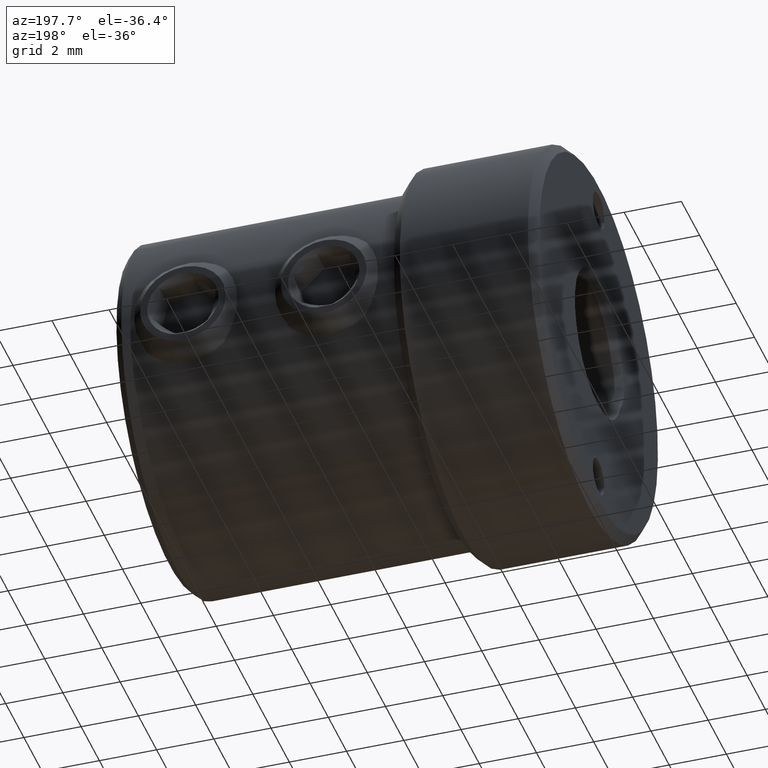
[diagram: clean part render]
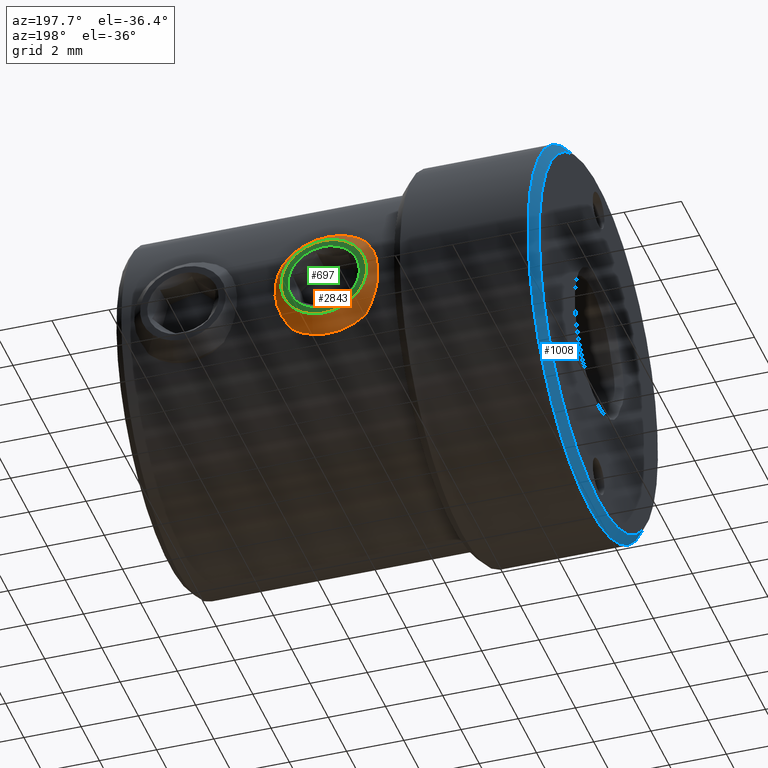
[diagram: same view with three faces highlighted in distinct colors, each labeled with its STEP entity id]
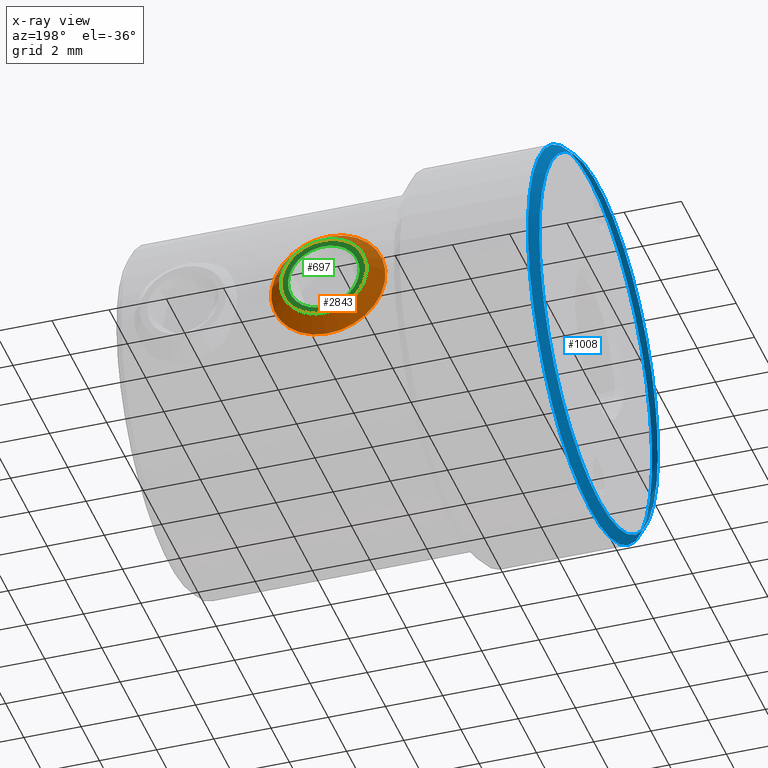
[diagram: x-ray of the same camera — body ghosted, the three highlighted faces saturated]
A machine part, auxiliary view with three faces highlighted in distinct colors.
The next image is the same camera in x-ray (body ghosted, the three faces saturated) — at least one of them is partly hidden behind the body in this view.
Their STEP definitions:

[orange] entity #2843 — the highlighted conical surface has half-angle 45 deg.
#467 = CIRCLE ( 'NONE', #2787, 2.000000000000000444 ) ;
#483 = EDGE_CURVE ( 'NONE', #1039, #1039, #467, .T. ) ;
#496 = DIRECTION ( 'NONE',  ( 5.083153145339558669E-16, -1.000000000000000000, -1.738507377522710013E-17 ) ) ;
#590 = AXIS2_PLACEMENT_3D ( 'NONE', #2140, #2669, #3161 ) ;
#753 = CARTESIAN_POINT ( 'NONE',  ( 7.989235859113584581, 6.350000000042742343, -1.443095981450885024 ) ) ;
#794 = DIRECTION ( 'NONE',  ( 0.2728239060718309350, 0.000000000000000000, -0.9620639876202147223 ) ) ;
#817 = DIRECTION ( 'NONE',  ( 0.2728239060718308240, 0.000000000000000000, -0.9620639876202148333 ) ) ;
#1039 = VERTEX_POINT ( 'NONE', #2370 ) ;
#1206 = EDGE_LOOP ( 'NONE', ( #2130 ) ) ;
#1272 = CIRCLE ( 'NONE', #590, 1.500000000021373348 ) ;
#1314 = FACE_BOUND ( 'NONE', #1206, .T. ) ;
#1361 = CARTESIAN_POINT ( 'NONE',  ( 7.580000000000008065, 5.849999999999995204, -4.544457926447441304E-16 ) ) ;
#1386 = EDGE_LOOP ( 'NONE', ( #2944 ) ) ;
#1387 = CARTESIAN_POINT ( 'NONE',  ( 7.580000000000008065, 5.850000000168251724, -4.544457926418189355E-16 ) ) ;
#1755 = VERTEX_POINT ( 'NONE', #753 ) ;
#1896 = DIRECTION ( 'NONE',  ( 5.083153145339558669E-16, -1.000000000000000000, -1.738507377522710013E-17 ) ) ;
#2130 = ORIENTED_EDGE ( 'NONE', *, *, #2251, .T. ) ;
#2140 = CARTESIAN_POINT ( 'NONE',  ( 7.580000000000007176, 6.350000000042742343, -4.457532557563873486E-16 ) ) ;
#2251 = EDGE_CURVE ( 'NONE', #1755, #1755, #1272, .T. ) ;
#2337 = AXIS2_PLACEMENT_3D ( 'NONE', #1387, #496, #817 ) ;
#2370 = CARTESIAN_POINT ( 'NONE',  ( 8.125647812143670379, 5.849999999999995204, -1.924127975240430333 ) ) ;
#2402 = FACE_OUTER_BOUND ( 'NONE', #1386, .T. ) ;
#2669 = DIRECTION ( 'NONE',  ( 5.083153145339558669E-16, -1.000000000000000000, -1.738507377522710013E-17 ) ) ;
#2787 = AXIS2_PLACEMENT_3D ( 'NONE', #1361, #1896, #794 ) ;
#2843 = ADVANCED_FACE ( 'NONE', ( #2402, #1314 ), #3372, .T. ) ;
#2944 = ORIENTED_EDGE ( 'NONE', *, *, #483, .F. ) ;
#3161 = DIRECTION ( 'NONE',  ( 0.2728239060718312126, 0.000000000000000000, -0.9620639876202147223 ) ) ;
#3372 = CONICAL_SURFACE ( 'NONE', #2337, 1.999999999839019660, 0.7853981633406048601 ) ;

[blue] entity #1008 — the highlighted conical surface has half-angle 45 deg.
#104 = VERTEX_POINT ( 'NONE', #1056 ) ;
#160 = CARTESIAN_POINT ( 'NONE',  ( 0.3000000000383806764, 0.000000000000000000, 0.000000000000000000 ) ) ;
#579 = ORIENTED_EDGE ( 'NONE', *, *, #2683, .F. ) ;
#582 = AXIS2_PLACEMENT_3D ( 'NONE', #2258, #1398, #2719 ) ;
#701 = EDGE_CURVE ( 'NONE', #951, #951, #867, .T. ) ;
#829 = DIRECTION ( 'NONE',  ( 1.000000000000000000, 0.000000000000000000, 0.000000000000000000 ) ) ;
#867 = CIRCLE ( 'NONE', #582, 6.495000000029449438 ) ;
#951 = VERTEX_POINT ( 'NONE', #2132 ) ;
#1008 = ADVANCED_FACE ( 'NONE', ( #2269, #2594 ), #1150, .T. ) ;
#1056 = CARTESIAN_POINT ( 'NONE',  ( 0.2999999999999999334, 0.000000000000000000, 6.794999999999999929 ) ) ;
#1150 = CONICAL_SURFACE ( 'NONE', #2277, 6.795000000067830115, 0.7853981633974482790 ) ;
#1333 = EDGE_LOOP ( 'NONE', ( #579 ) ) ;
#1344 = CARTESIAN_POINT ( 'NONE',  ( 0.2999999999999999334, 0.000000000000000000, 0.000000000000000000 ) ) ;
#1398 = DIRECTION ( 'NONE',  ( 1.000000000000000000, 0.000000000000000000, 0.000000000000000000 ) ) ;
#1523 = DIRECTION ( 'NONE',  ( 0.000000000000000000, 0.000000000000000000, -1.000000000000000000 ) ) ;
#1672 = AXIS2_PLACEMENT_3D ( 'NONE', #1344, #829, #2103 ) ;
#2103 = DIRECTION ( 'NONE',  ( 0.000000000000000000, 0.000000000000000000, 1.000000000000000000 ) ) ;
#2132 = CARTESIAN_POINT ( 'NONE',  ( 0.000000000000000000, 0.000000000000000000, -6.495000000029449438 ) ) ;
#2171 = CIRCLE ( 'NONE', #1672, 6.794999999999999929 ) ;
#2248 = ORIENTED_EDGE ( 'NONE', *, *, #701, .T. ) ;
#2258 = CARTESIAN_POINT ( 'NONE',  ( 0.000000000000000000, 0.000000000000000000, 0.000000000000000000 ) ) ;
#2269 = FACE_OUTER_BOUND ( 'NONE', #1333, .T. ) ;
#2277 = AXIS2_PLACEMENT_3D ( 'NONE', #160, #2886, #1523 ) ;
#2594 = FACE_BOUND ( 'NONE', #3233, .T. ) ;
#2683 = EDGE_CURVE ( 'NONE', #104, #104, #2171, .T. ) ;
#2719 = DIRECTION ( 'NONE',  ( 0.000000000000000000, 0.000000000000000000, -1.000000000000000000 ) ) ;
#2886 = DIRECTION ( 'NONE',  ( 1.000000000000000000, 0.000000000000000000, 0.000000000000000000 ) ) ;
#3233 = EDGE_LOOP ( 'NONE', ( #2248 ) ) ;

[green] entity #697 — the highlighted planar face has unit normal (-0, 1, 0).
#241 = CIRCLE ( 'NONE', #985, 1.249999999970441866 ) ;
#304 = DIRECTION ( 'NONE',  ( -5.083153145339557682E-16, 1.000000000000000000, 1.738507377522710321E-17 ) ) ;
#321 = PLANE ( 'NONE',  #2164 ) ;
#590 = AXIS2_PLACEMENT_3D ( 'NONE', #2140, #2669, #3161 ) ;
#697 = ADVANCED_FACE ( 'NONE', ( #1926, #1179 ), #321, .T. ) ;
#753 = CARTESIAN_POINT ( 'NONE',  ( 7.989235859113584581, 6.350000000042742343, -1.443095981450885024 ) ) ;
#816 = ORIENTED_EDGE ( 'NONE', *, *, #2251, .F. ) ;
#985 = AXIS2_PLACEMENT_3D ( 'NONE', #3097, #1235, #2548 ) ;
#1135 = ORIENTED_EDGE ( 'NONE', *, *, #1220, .T. ) ;
#1179 = FACE_BOUND ( 'NONE', #3505, .T. ) ;
#1220 = EDGE_CURVE ( 'NONE', #2114, #2114, #241, .T. ) ;
#1235 = DIRECTION ( 'NONE',  ( 3.414238160507553673E-16, -1.000000000000000000, -6.471247724554803936E-17 ) ) ;
#1272 = CIRCLE ( 'NONE', #590, 1.500000000021373348 ) ;
#1755 = VERTEX_POINT ( 'NONE', #753 ) ;
#1926 = FACE_OUTER_BOUND ( 'NONE', #2160, .T. ) ;
#2114 = VERTEX_POINT ( 'NONE', #2831 ) ;
#2140 = CARTESIAN_POINT ( 'NONE',  ( 7.580000000000007176, 6.350000000042742343, -4.457532557563873486E-16 ) ) ;
#2160 = EDGE_LOOP ( 'NONE', ( #816 ) ) ;
#2164 = AXIS2_PLACEMENT_3D ( 'NONE', #3008, #304, #2516 ) ;
#2251 = EDGE_CURVE ( 'NONE', #1755, #1755, #1272, .T. ) ;
#2516 = DIRECTION ( 'NONE',  ( -0.2728239060718307130, -1.554061230285516498E-16, 0.9620639876202148333 ) ) ;
#2548 = DIRECTION ( 'NONE',  ( -0.9620639876202148333, 0.000000000000000000, -0.2728239060718306019 ) ) ;
#2669 = DIRECTION ( 'NONE',  ( 5.083153145339558669E-16, -1.000000000000000000, -1.738507377522710013E-17 ) ) ;
#2831 = CARTESIAN_POINT ( 'NONE',  ( 6.377420015503175499, 6.349999999927105065, -0.3410298825817245083 ) ) ;
#3008 = CARTESIAN_POINT ( 'NONE',  ( 7.580000000000007176, 6.349999999999996092, -4.457532557571305541E-16 ) ) ;
#3097 = CARTESIAN_POINT ( 'NONE',  ( 7.580000000000007176, 6.349999999927105065, -4.457532557557997458E-16 ) ) ;
#3161 = DIRECTION ( 'NONE',  ( 0.2728239060718312126, 0.000000000000000000, -0.9620639876202147223 ) ) ;
#3505 = EDGE_LOOP ( 'NONE', ( #1135 ) ) ;